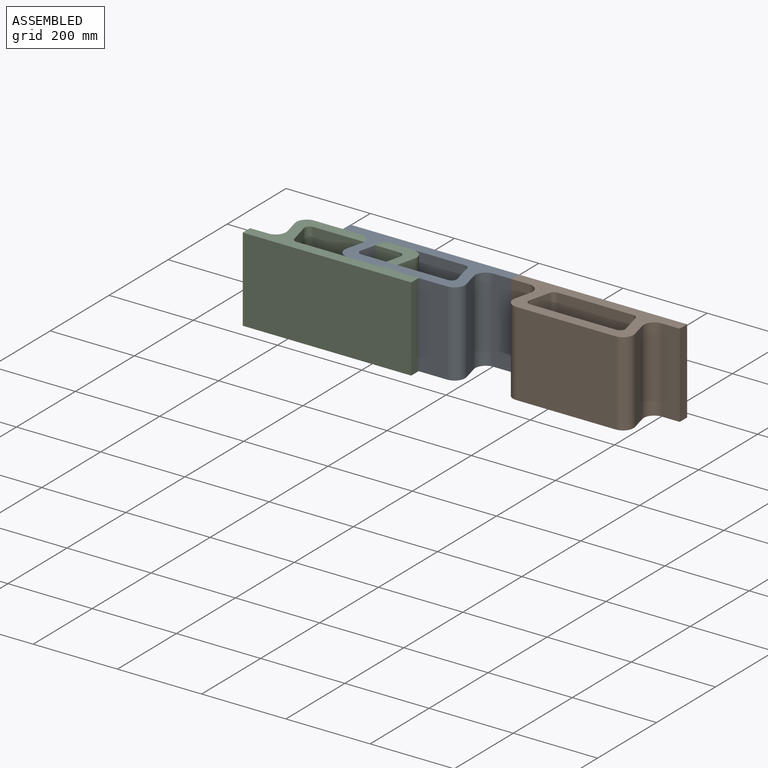
[diagram: assembled view]
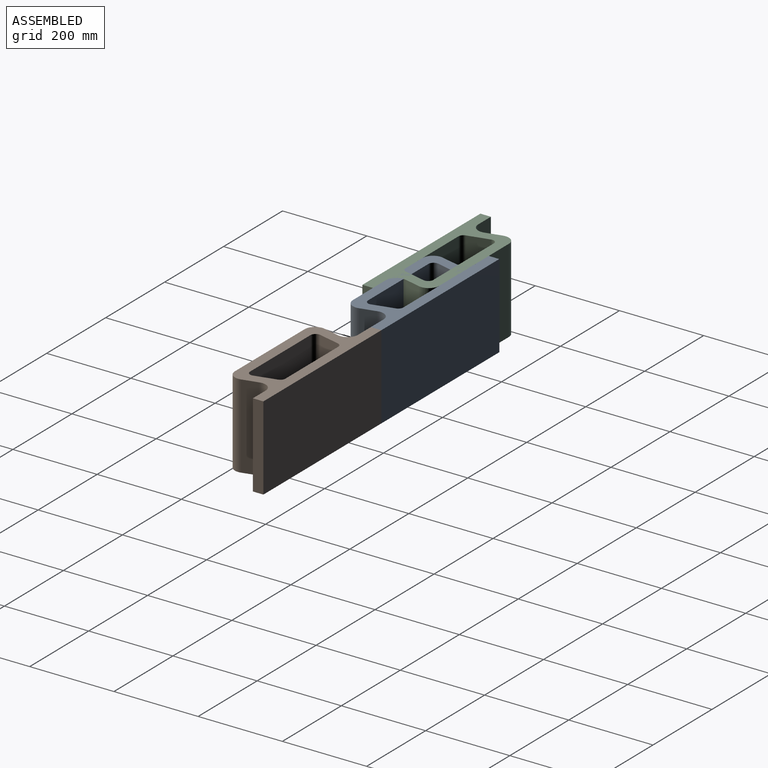
[diagram: assembled view, second angle]
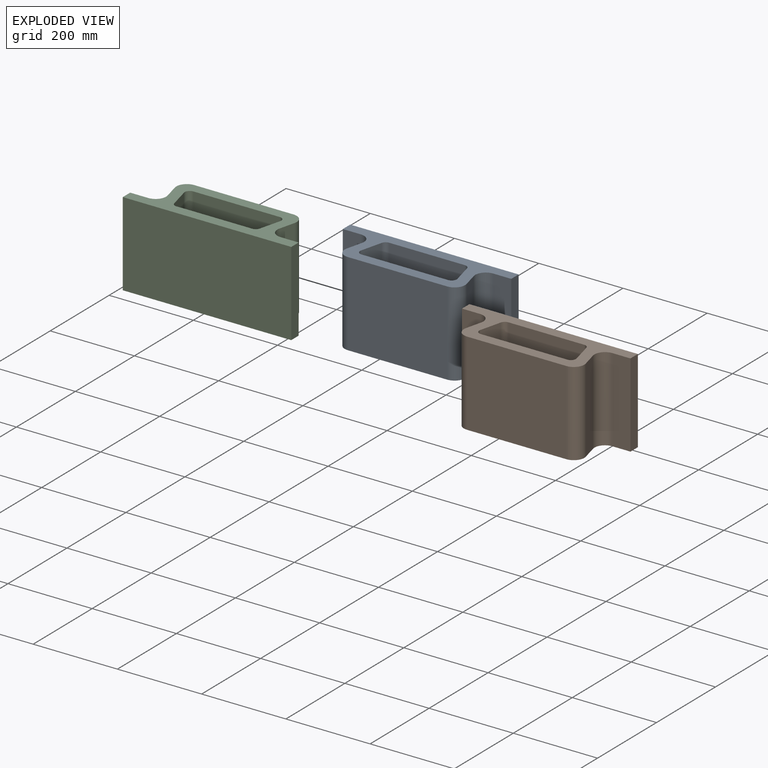
[diagram: exploded view]
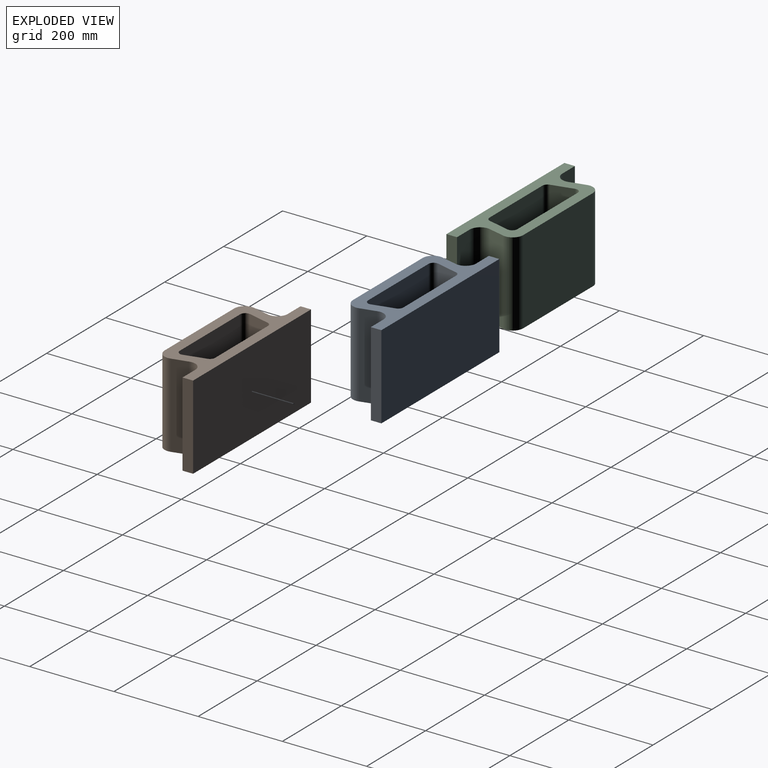
[diagram: exploded view, second angle]
ASSEMBLY  parts=3 mates=2
PART A: 22 faces, bbox 400x125x200 mm
  f0: plane 200x42.98mm, normal (0,-1,0), area 8596.1mm2, adj f1,f19,f20,f21
  f1: plane 200x25mm, normal (1,0,0), area 5000mm2, adj f0,f2,f20,f21
  f2: plane 400x200mm, normal (0,1,0), area 80000mm2, adj f1,f3,f20,f21
  f3: plane 200x25mm, normal (-1,0,0), area 5000mm2, adj f2,f4,f20,f21
  f4: plane 200x42.98mm, normal (0,-1,0), area 8596.1mm2, adj f3,f5,f20,f21
  f5: cylinder r=25mm len=200mm, axis (0,0,-1), area 9078.9mm2, adj f4,f6,f20,f21
  f6: plane 200x37.87mm, normal (-0.97,0.24,0), area 7807.8mm2, adj f5,f7,f20,f21
  f7: cylinder r=25mm len=200mm, axis (0,0,-1), area 9078.9mm2, adj f6,f8,f20,f21
  f8: plane 235.96x200mm, normal (0,-1,0), area 47192.2mm2, adj f7,f9,f20,f21
  f9: cylinder r=25mm len=200mm, axis (0,0,-1), area 9078.9mm2, adj f8,f10,f20,f21
  f10: plane 200x37.87mm, normal (0.97,0.24,0), area 7807.8mm2, adj f9,f19,f20,f21
  f11: cylinder r=12mm len=200mm, axis (0,0,-1), area 3182mm2, adj f12,f18,f20,f21
  f12: plane 200x51mm, normal (-0.97,-0.24,0), area 10513.9mm2, adj f11,f13,f20,f21
  f13: cylinder r=12mm len=200mm, axis (0,0,-1), area 4357.9mm2, adj f12,f14,f20,f21
  f14: plane 205.22x200mm, normal (0,1,0), area 41044.5mm2, adj f13,f15,f20,f21
  f15: cylinder r=12mm len=200mm, axis (0,0,-1), area 4357.9mm2, adj f14,f16,f20,f21
  f16: plane 200x51mm, normal (0.97,-0.24,0), area 10513.9mm2, adj f15,f17,f20,f21
  f17: cylinder r=12mm len=200mm, axis (0,0,-1), area 3182mm2, adj f16,f18,f20,f21
  f18: plane 200x179.72mm, normal (0,-1,0), area 35944.5mm2, adj f11,f17,f20,f21
  f19: cylinder r=25mm len=200mm, axis (0,0,-1), area 9078.9mm2, adj f0,f10,f20,f21
  f20: plane 400x125mm, normal (0,0,1), area 21350.5mm2, adj f0,f1,f2,f3,f4,f5,f6,f7
  f21: plane 400x125mm, normal (0,0,-1), area 21350.5mm2, adj f0,f1,f2,f3,f4,f5,f6,f7
PART B: same geometry as A
PART C: same geometry as A
PLACE A at identity fixed
PLACE B t=(400,0,0)mm
PLACE C rot(axis=(0,0,1),180deg) t=(-150,0,0)mm
MATE fastened A.f20 <-> A.f20  axis (0,0,1) through (0,-50,200)mm
MATE fastened A.f0 <-> B.f4  axis (0,-1,0) through (200,50,100)mm
